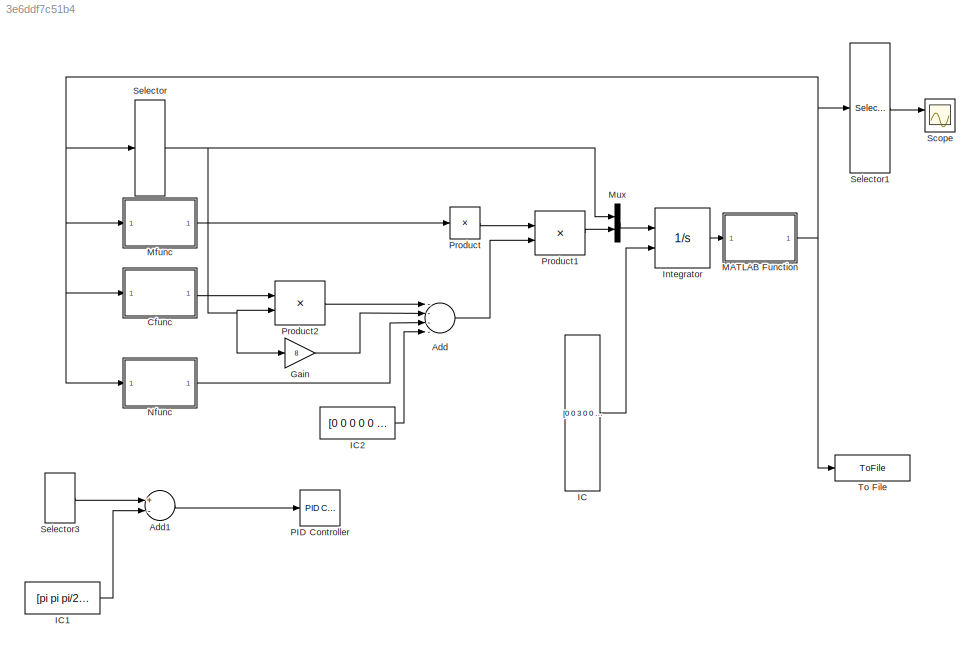
MODEL slx_3e6ddf7c51b4
KIND model
CONFIG AbsTol = auto
CONFIG EnableMultiTasking = off
CONFIG FixedStep = auto
CONFIG MaxStep = auto
CONFIG MinStep = auto
CONFIG RelTol = 1e-3
CONFIG SampleTimeConstraint = Unconstrained
CONFIG Solver = VariableStepAuto
CONFIG SolverName = VariableStepAuto
CONFIG StartTime = 0.0
CONFIG StopTime = 10.0
BLOCK [Sum] Add
  InputSameDT = off
  Inputs = ----
  OutDataTypeStr = Inherit: Inherit via internal rule
  Ports = [4, 1]
  SaturateOnIntegerOverflow = off
BLOCK [Sum] Add1
  InputSameDT = off
  Inputs = +-
  OutDataTypeStr = Inherit: Inherit via internal rule
  Ports = [2, 1]
  SaturateOnIntegerOverflow = off
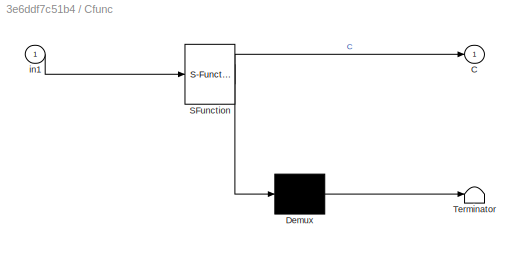
BLOCK [SubSystem] Cfunc
  ErrorFcn = Stateflow.Translate.translate
  PermitHierarchicalResolution = ExplicitOnly
  Ports = [1, 1]
  RequestExecContextInheritance = off
  SFBlockType = MATLAB Function
  TreatAsAtomicUnit = on
BLOCK [Demux] Cfunc/ Demux 
  Outputs = 1
  Ports = [1, 1]
BLOCK [S-Function] Cfunc/ SFunction 
  EnableBusSupport = on
  FunctionName = sf_sfun
  PortCounts = [1 2]
  Ports = [1, 2]
  SFcnIsStateOwnerBlock = off
  SFunctionDeploymentMode = off
  Tag = Stateflow S-Function Example4_3_Model 1
BLOCK [Terminator] Cfunc/ Terminator 
BLOCK [Outport] Cfunc/C
  IconDisplay = Port number
BLOCK [Inport] Cfunc/in1
  IconDisplay = Port number
BLOCK [Gain] Gain
  Gain = 8
  OutDataTypeStr = Inherit: Inherit via internal rule
  ParamDataTypeStr = Inherit: Inherit via internal rule
  SaturateOnIntegerOverflow = off
BLOCK [Constant] IC
  Value = [0 0 3 0 0 0 0 0 0 0 0 0]'
  VectorParams1D = off
BLOCK [Constant] IC1
  Value = [pi pi pi/2 0 0 0 ]'
  VectorParams1D = off
BLOCK [Constant] IC2
  Value = [0 0 0 0 0 0 ]'
  VectorParams1D = off
BLOCK [Integrator] Integrator
  InitialConditionSource = external
  Ports = [2, 1]
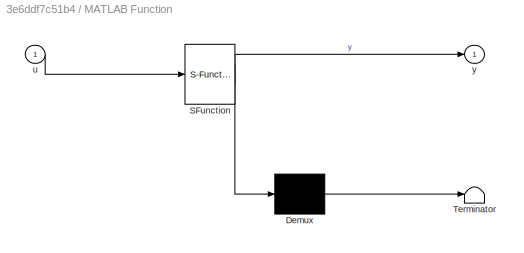
BLOCK [SubSystem] MATLAB Function
  ErrorFcn = Stateflow.Translate.translate
  PermitHierarchicalResolution = ExplicitOnly
  Ports = [1, 1]
  RequestExecContextInheritance = off
  SFBlockType = MATLAB Function
  TreatAsAtomicUnit = on
BLOCK [Demux] MATLAB Function/ Demux 
  Outputs = 1
  Ports = [1, 1]
BLOCK [S-Function] MATLAB Function/ SFunction 
  EnableBusSupport = on
  FunctionName = sf_sfun
  PortCounts = [1 2]
  Ports = [1, 2]
  SFcnIsStateOwnerBlock = off
  SFunctionDeploymentMode = off
  Tag = Stateflow S-Function Example4_3_Model 4
BLOCK [Terminator] MATLAB Function/ Terminator 
BLOCK [Inport] MATLAB Function/u
  IconDisplay = Port number
BLOCK [Outport] MATLAB Function/y
  IconDisplay = Port number
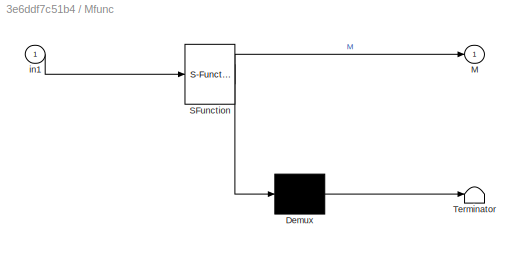
BLOCK [SubSystem] Mfunc
  ErrorFcn = Stateflow.Translate.translate
  PermitHierarchicalResolution = ExplicitOnly
  Ports = [1, 1]
  RequestExecContextInheritance = off
  SFBlockType = MATLAB Function
  TreatAsAtomicUnit = on
BLOCK [Demux] Mfunc/ Demux 
  Outputs = 1
  Ports = [1, 1]
BLOCK [S-Function] Mfunc/ SFunction 
  EnableBusSupport = on
  FunctionName = sf_sfun
  PortCounts = [1 2]
  Ports = [1, 2]
  SFcnIsStateOwnerBlock = off
  SFunctionDeploymentMode = off
  Tag = Stateflow S-Function Example4_3_Model 2
BLOCK [Terminator] Mfunc/ Terminator 
BLOCK [Outport] Mfunc/M
  IconDisplay = Port number
BLOCK [Inport] Mfunc/in1
  IconDisplay = Port number
BLOCK [Mux] Mux
  DisplayOption = bar
  Inputs = 2
  Ports = [2, 1]
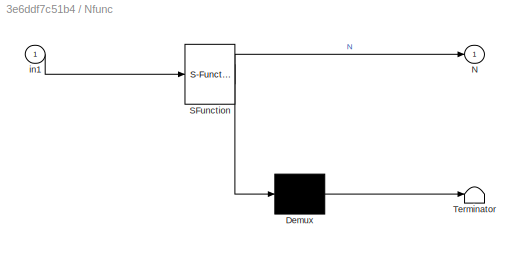
BLOCK [SubSystem] Nfunc
  ErrorFcn = Stateflow.Translate.translate
  PermitHierarchicalResolution = ExplicitOnly
  Ports = [1, 1]
  RequestExecContextInheritance = off
  SFBlockType = MATLAB Function
  TreatAsAtomicUnit = on
BLOCK [Demux] Nfunc/ Demux 
  Outputs = 1
  Ports = [1, 1]
BLOCK [S-Function] Nfunc/ SFunction 
  EnableBusSupport = on
  FunctionName = sf_sfun
  PortCounts = [1 2]
  Ports = [1, 2]
  SFcnIsStateOwnerBlock = off
  SFunctionDeploymentMode = off
  Tag = Stateflow S-Function Example4_3_Model 3
BLOCK [Terminator] Nfunc/ Terminator 
BLOCK [Outport] Nfunc/N
  IconDisplay = Port number
BLOCK [Inport] Nfunc/in1
  IconDisplay = Port number
BLOCK [Reference] PID Controller  REF=simulink/Continuous/PID Controller
  Ports = [1, 1]
  SourceBlock = simulink/Continuous/PID Controller
  SourceProductBaseCode = SL
  SourceProductName = Simulink
  SourceType = PID 1dof
BLOCK [Product] Product
  InputSameDT = off
  Inputs = /
  Multiplication = Matrix(*)
  OutDataTypeStr = Inherit: Inherit via internal rule
  Ports = [1, 1]
  RndMeth = Floor
  SaturateOnIntegerOverflow = off
BLOCK [Product] Product1
  InputSameDT = off
  Inputs = **
  Multiplication = Matrix(*)
  OutDataTypeStr = Inherit: Inherit via internal rule
  Ports = [2, 1]
  RndMeth = Floor
  SaturateOnIntegerOverflow = off
BLOCK [Product] Product2
  InputSameDT = off
  Inputs = **
  Multiplication = Matrix(*)
  OutDataTypeStr = Inherit: Inherit via internal rule
  Ports = [2, 1]
  RndMeth = Floor
  SaturateOnIntegerOverflow = off
BLOCK [Scope] Scope
  Floating = off
  NumInputPorts = 2
  Ports = [2]
  ScopeSpecificationString = Simulink.scopes.TimeScopeBlockCfg('CurrentConfiguration', extmgr.ConfigurationSet(extmgr.Configuration('Core','General UI',true),extmgr.Configuration('Core','Source UI',true),extmgr.Configuration('Sources','WiredSimulink',true),extmgr.Configuration('Visuals','Time Domain',true,'SerializedDisplays',{struct('MinYLimReal','-3.82957','MaxYLimReal','7.82609','YLabelReal','','MinYLimMag','0.00000','MaxY...<+1441ch>
BLOCK [Selector] Selector
  IndexOptions = Index vector (dialog)
  Indices = [7 8 9 10 11 12]
  InputPortWidth = 12
  OutputSizes = 1
  Ports = [1, 1]
BLOCK [Selector] Selector1
  IndexOptions = Index vector (dialog)
  Indices = [1 2 3 4 5 6]
  InputPortWidth = 12
  OutputSizes = 1
  Ports = [1, 1]
BLOCK [Selector] Selector3
  IndexOptions = Index vector (dialog)
  Indices = [1 2 3 4 5 6]
  InputPortWidth = 12
  OutputSizes = 1
  Ports = [1, 1]
BLOCK [ToFile] To File
  Filename = sim_4_3.mat
  Ports = [1]
  SampleTime = 1/30
LINE Add1:1 -> PID Controller:1
LINE Add:1 -> Product1:2
LINE Cfunc:1 -> Product2:1
LINE Gain:1 -> Add:2
LINE IC1:1 -> Add1:2
LINE IC2:1 -> Add:4
LINE IC:1 -> Integrator:2
LINE Integrator:1 -> MATLAB Function:1
NET MATLAB Function:1 -> Cfunc:1, Mfunc:1, Nfunc:1, Selector1:1, Selector:1, To File:1
LINE Mfunc:1 -> Product:1
LINE Mux:1 -> Integrator:1
LINE Nfunc:1 -> Add:3
LINE Product1:1 -> Mux:2
LINE Product2:1 -> Add:1
LINE Product:1 -> Product1:1
LINE Selector1:1 -> Scope:1
LINE Selector3:1 -> Add1:1
NET Selector:1 -> Gain:1, Mux:1, Product2:2
note: NET lines group one-source signal fan-out (src -> all destinations, sorted); 1:1 wires keep LINE
CHART Cfunc states=1 transitions=1
  STATE_LABEL 'eML_blk_kernel()'
  STATE_LABEL 'SCRIPT:\nfunction C = Cfunc(in1)\n%#codegen\n\n%    This function was generated by the Symbolic Math Toolbox version 8.1.\n%    08-May-2018 14:20:51\n\nth4 = in1(4,:);\nth5 = in1(5,:);\nth6 = in1(6,:);\nth4d = in1(10,:);\nth5d = in1(11,:);\nth6d = in1(12,:);\nt2 = cos(th4);\nt3 = cos(th5);\nt4 = sin(th4);\nt5 = cos(th6);\nt6 = sin(th5);\nt7 = sin(th6);\nt8 = t2.*t3.*t7.*th4d.*(2.7e1./8.0);\nt9 = t2.*t5.*t6.*th4d.*(2....<+2155ch>'
CHART Mfunc states=1 transitions=1
  STATE_LABEL 'eML_blk_kernel()'
  STATE_LABEL 'SCRIPT:\nfunction M = Mfunc(in1)\n%#codegen\n\n%    This function was generated by the Symbolic Math Toolbox version 8.1.\n%    08-May-2018 14:20:51\n\nth4 = in1(4,:);\nth5 = in1(5,:);\nth6 = in1(6,:);\nt2 = cos(th4);\nt3 = cos(th5);\nt4 = sin(th4);\nt5 = sin(th5);\nt6 = th5+th6;\nt7 = sin(t6);\nt8 = sin(th6);\nt9 = cos(th6);\nt10 = t5.*3.0;\nt11 = t7+t10;\nt12 = cos(t6);\nt13 = t2.*t5.*t8.*(2.7e1./8.0);\nt14 = t4.*(-2...<+831ch>'
CHART Nfunc states=1 transitions=1
  STATE_LABEL 'eML_blk_kernel()'
  STATE_LABEL 'SCRIPT:\nfunction N = Nfunc(in1)\n%#codegen\n\n%    This function was generated by the Symbolic Math Toolbox version 8.1.\n%    08-May-2018 14:20:51\n\nth5 = in1(5,:);\nth6 = in1(6,:);\nt2 = th5+th6;\nt3 = cos(t2);\nN = [0.0;0.0;1.566e3;0.0;t3.*(-1.35e2./4.0)-cos(th5).*(4.05e2./4.0);t3.*(-1.35e2./4.0)];\n'
CHART MATLAB Function states=1 transitions=1
  STATE_LABEL 'eML_blk_kernel()'
  STATE_LABEL "SCRIPT:\nfunction y = floorSim(u)\n% Simulate floor in z-dir so we don't lose our robot\n\n    y = u; %pass through vector\n\n    \n    % edit only if we're going through the floor\n    if u(3) < 0 && u(9) < 0\n        y(9) = -.7*u(9); %Flip sign and reduce velocity by arbitrary amount\n    end\nend\n"
